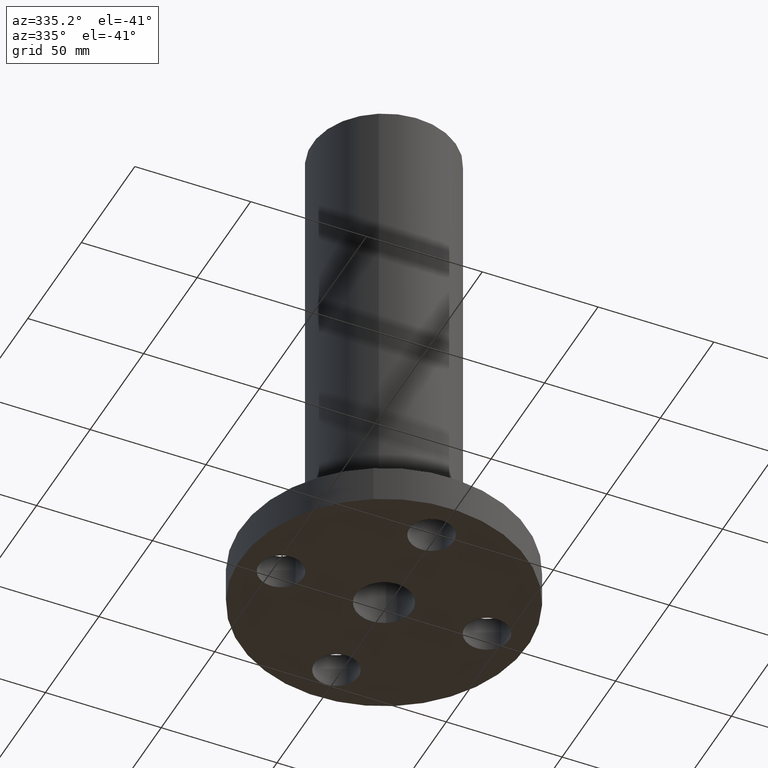
[diagram: clean part render]
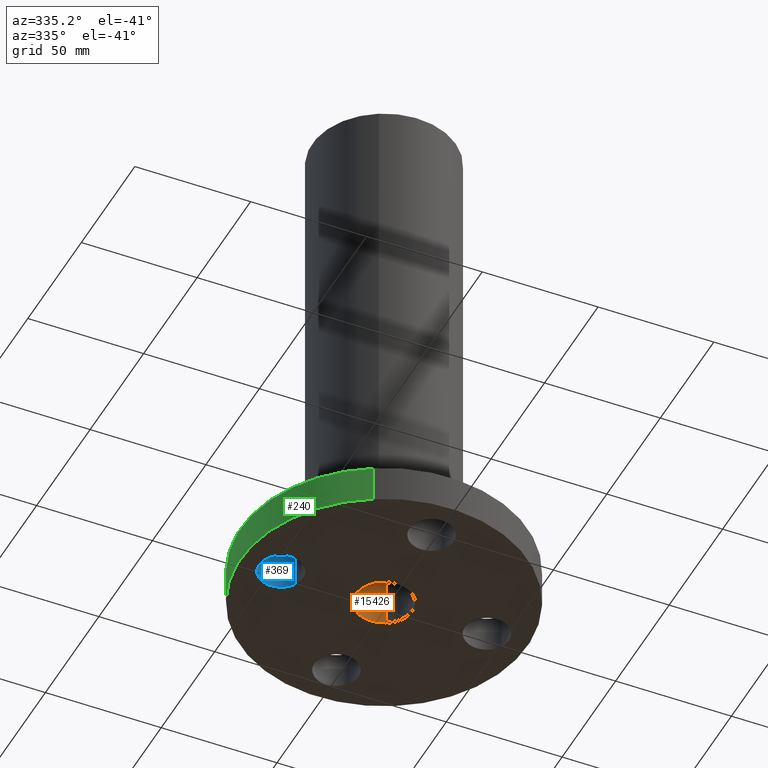
[diagram: same view with three faces highlighted in distinct colors, each labeled with its STEP entity id]
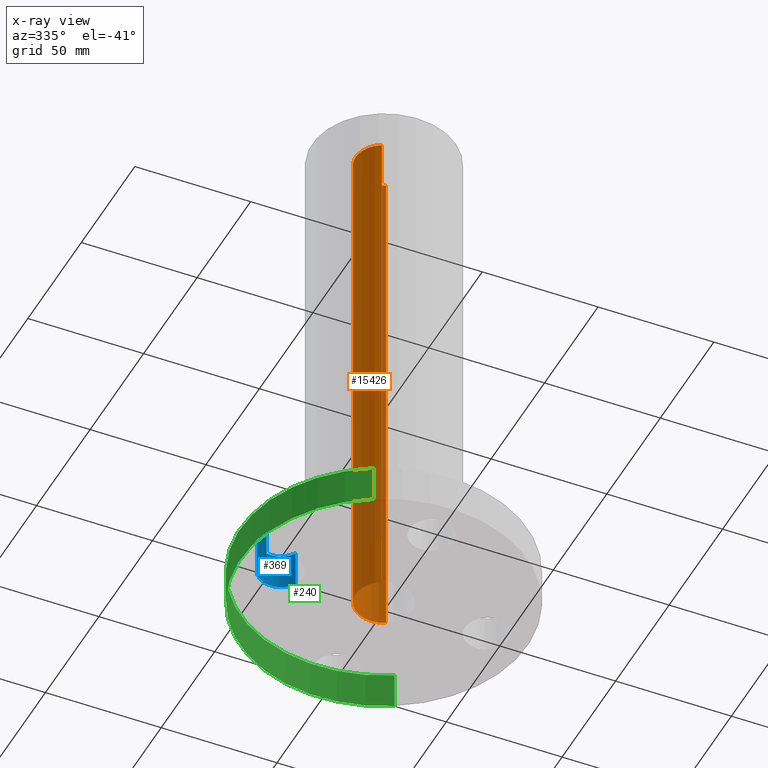
[diagram: x-ray of the same camera — body ghosted, the three highlighted faces saturated]
A machine part, auxiliary view with three faces highlighted in distinct colors.
The next image is the same camera in x-ray (body ghosted, the three faces saturated) — at least one of them is partly hidden behind the body in this view.
Their STEP definitions:

[orange] entity #15426 — the highlighted cylindrical surface (edge-blend (fillet) strip) has radius 12.192 mm, axis along (0, 0, -1).
#14949=AXIS2_PLACEMENT_3D('Circle Axis2P3D',#14947,#14948,$) ;
#15387=AXIS2_PLACEMENT_3D('Cylinder Axis2P3D',#15384,#15385,#15386) ;
#15417=AXIS2_PLACEMENT_3D('Circle Axis2P3D',#15415,#15416,$) ;
#14947=CARTESIAN_POINT('Axis2P3D Location',(0.,0.,8.93750000004)) ;
#14951=CARTESIAN_POINT('Vertex',(-0.230124258531,-0.421239629709,8.93750000004)) ;
#14953=CARTESIAN_POINT('Vertex',(0.230124258531,0.421239629709,8.93750000004)) ;
#15384=CARTESIAN_POINT('Axis2P3D Location',(0.,0.,4.43750000002)) ;
#15393=CARTESIAN_POINT('Vertex',(-0.230124258531,-0.421239629709,0.)) ;
#15395=CARTESIAN_POINT('Vertex',(0.230124258531,0.421239629709,0.)) ;
#15398=CARTESIAN_POINT('Line Origine',(-0.230124258531,-0.421239629709,4.46875000002)) ;
#15403=CARTESIAN_POINT('Line Origine',(0.230124258531,0.421239629709,4.46875000002)) ;
#15415=CARTESIAN_POINT('Axis2P3D Location',(0.,0.,0.)) ;
#14948=DIRECTION('Axis2P3D Direction',(0.,0.,-0.0393700787402)) ;
#15385=DIRECTION('Axis2P3D Direction',(0.,0.,-0.0393700787402)) ;
#15386=DIRECTION('Axis2P3D XDirection',(-0.0188750212049,-0.0345504945626,0.)) ;
#15399=DIRECTION('Vector Direction',(0.,0.,-0.0393700787402)) ;
#15404=DIRECTION('Vector Direction',(0.,0.,-0.0393700787402)) ;
#15416=DIRECTION('Axis2P3D Direction',(0.,0.,-0.0393700787402)) ;
#15400=VECTOR('Line Direction',#15399,0.0393700787402) ;
#15405=VECTOR('Line Direction',#15404,0.0393700787402) ;
#15421=ORIENTED_EDGE('',*,*,#15419,.F.) ;
#15422=ORIENTED_EDGE('',*,*,#15407,.F.) ;
#15423=ORIENTED_EDGE('',*,*,#14955,.F.) ;
#15424=ORIENTED_EDGE('',*,*,#15402,.T.) ;
#15426=ADVANCED_FACE('PartBody',(#15425),#15388,.F.) ;
#14950=CIRCLE('generated circle',#14949,0.480000000002) ;
#15418=CIRCLE('generated circle',#15417,0.480000000002) ;
#15388=CYLINDRICAL_SURFACE('generated cylinder',#15387,0.480000000002) ;
#14955=EDGE_CURVE('',#14952,#14954,#14950,.T.) ;
#15402=EDGE_CURVE('',#14952,#15394,#15401,.T.) ;
#15407=EDGE_CURVE('',#14954,#15396,#15406,.T.) ;
#15419=EDGE_CURVE('',#15396,#15394,#15418,.F.) ;
#15420=EDGE_LOOP('',(#15421,#15422,#15423,#15424)) ;
#15425=FACE_OUTER_BOUND('',#15420,.T.) ;
#15401=LINE('Line',#15398,#15400) ;
#15406=LINE('Line',#15403,#15405) ;
#14952=VERTEX_POINT('',#14951) ;
#14954=VERTEX_POINT('',#14953) ;
#15394=VERTEX_POINT('',#15393) ;
#15396=VERTEX_POINT('',#15395) ;

[blue] entity #369 — the highlighted cylindrical surface (edge-blend (fillet) strip) has radius 9.525 mm, axis along (0, 0, 1).
#166=AXIS2_PLACEMENT_3D('Circle Axis2P3D',#164,#165,$) ;
#342=AXIS2_PLACEMENT_3D('Cylinder Axis2P3D',#339,#340,#341) ;
#360=AXIS2_PLACEMENT_3D('Circle Axis2P3D',#358,#359,$) ;
#159=CARTESIAN_POINT('Vertex',(-1.4209065393,0.179784576977,0.627500000003)) ;
#161=CARTESIAN_POINT('Vertex',(-2.07909346072,-0.179784576977,0.627500000003)) ;
#164=CARTESIAN_POINT('Axis2P3D Location',(-1.75000000001,-2.79741234551E-016,0.627500000003)) ;
#339=CARTESIAN_POINT('Axis2P3D Location',(-1.75000000001,-2.14313189852E-016,0.00393700787402)) ;
#344=CARTESIAN_POINT('Line Origine',(-1.4209065393,0.179784576977,0.313750000001)) ;
#348=CARTESIAN_POINT('Vertex',(-1.4209065393,0.179784576977,2.2401153548E-016)) ;
#351=CARTESIAN_POINT('Line Origine',(-2.07909346072,-0.179784576977,0.313750000001)) ;
#355=CARTESIAN_POINT('Vertex',(-2.07909346072,-0.179784576977,2.2401153548E-016)) ;
#358=CARTESIAN_POINT('Axis2P3D Location',(-1.75000000001,-2.14313189852E-016,0.)) ;
#165=DIRECTION('Axis2P3D Direction',(0.,0.,-0.0393700787402)) ;
#340=DIRECTION('Axis2P3D Direction',(0.,0.,0.0393700787402)) ;
#341=DIRECTION('Axis2P3D XDirection',(-0.0345504945626,-0.0188750212049,0.)) ;
#345=DIRECTION('Vector Direction',(0.,0.,0.0393700787402)) ;
#352=DIRECTION('Vector Direction',(0.,0.,0.0393700787402)) ;
#359=DIRECTION('Axis2P3D Direction',(0.,0.,0.0393700787402)) ;
#346=VECTOR('Line Direction',#345,0.0393700787402) ;
#353=VECTOR('Line Direction',#352,0.0393700787402) ;
#364=ORIENTED_EDGE('',*,*,#350,.F.) ;
#365=ORIENTED_EDGE('',*,*,#168,.F.) ;
#366=ORIENTED_EDGE('',*,*,#357,.T.) ;
#367=ORIENTED_EDGE('',*,*,#362,.T.) ;
#369=ADVANCED_FACE('PartBody',(#368),#343,.F.) ;
#167=CIRCLE('generated circle',#166,0.375000000002) ;
#361=CIRCLE('generated circle',#360,0.375000000002) ;
#343=CYLINDRICAL_SURFACE('generated cylinder',#342,0.375000000002) ;
#168=EDGE_CURVE('',#162,#160,#167,.T.) ;
#350=EDGE_CURVE('',#160,#349,#347,.F.) ;
#357=EDGE_CURVE('',#162,#356,#354,.F.) ;
#362=EDGE_CURVE('',#356,#349,#361,.F.) ;
#363=EDGE_LOOP('',(#364,#365,#366,#367)) ;
#368=FACE_OUTER_BOUND('',#363,.T.) ;
#347=LINE('Line',#344,#346) ;
#354=LINE('Line',#351,#353) ;
#160=VERTEX_POINT('',#159) ;
#162=VERTEX_POINT('',#161) ;
#349=VERTEX_POINT('',#348) ;
#356=VERTEX_POINT('',#355) ;

[green] entity #240 — the highlighted cylindrical surface (partial cylindrical patch) has radius 61.976 mm, axis along (0, 0, -1).
#108=AXIS2_PLACEMENT_3D('Circle Axis2P3D',#106,#107,$) ;
#213=AXIS2_PLACEMENT_3D('Cylinder Axis2P3D',#210,#211,#212) ;
#217=AXIS2_PLACEMENT_3D('Circle Axis2P3D',#215,#216,$) ;
#101=CARTESIAN_POINT('Vertex',(1.1697983142,2.14130145102,0.627500000003)) ;
#103=CARTESIAN_POINT('Vertex',(-1.1697983142,-2.14130145102,0.627500000003)) ;
#106=CARTESIAN_POINT('Axis2P3D Location',(0.,0.,0.627500000003)) ;
#210=CARTESIAN_POINT('Axis2P3D Location',(0.,0.,4.43750000002)) ;
#215=CARTESIAN_POINT('Axis2P3D Location',(0.,0.,5.59482469102E-016)) ;
#219=CARTESIAN_POINT('Vertex',(-1.1697983142,-2.14130145102,0.)) ;
#221=CARTESIAN_POINT('Vertex',(1.1697983142,2.14130145102,0.)) ;
#224=CARTESIAN_POINT('Line Origine',(-1.1697983142,-2.14130145102,0.313750000001)) ;
#229=CARTESIAN_POINT('Line Origine',(1.1697983142,2.14130145102,0.313750000001)) ;
#107=DIRECTION('Axis2P3D Direction',(0.,0.,-0.0393700787402)) ;
#211=DIRECTION('Axis2P3D Direction',(0.,0.,-0.0393700787402)) ;
#212=DIRECTION('Axis2P3D XDirection',(0.0188750212049,0.0345504945626,0.)) ;
#216=DIRECTION('Axis2P3D Direction',(0.,0.,-0.0393700787402)) ;
#225=DIRECTION('Vector Direction',(0.,0.,-0.0393700787402)) ;
#230=DIRECTION('Vector Direction',(0.,0.,-0.0393700787402)) ;
#226=VECTOR('Line Direction',#225,0.0393700787402) ;
#231=VECTOR('Line Direction',#230,0.0393700787402) ;
#235=ORIENTED_EDGE('',*,*,#223,.F.) ;
#236=ORIENTED_EDGE('',*,*,#228,.T.) ;
#237=ORIENTED_EDGE('',*,*,#110,.T.) ;
#238=ORIENTED_EDGE('',*,*,#233,.F.) ;
#240=ADVANCED_FACE('PartBody',(#239),#214,.T.) ;
#109=CIRCLE('generated circle',#108,2.44000000001) ;
#218=CIRCLE('generated circle',#217,2.44000000001) ;
#214=CYLINDRICAL_SURFACE('generated cylinder',#213,2.44000000001) ;
#110=EDGE_CURVE('',#104,#102,#109,.T.) ;
#223=EDGE_CURVE('',#220,#222,#218,.T.) ;
#228=EDGE_CURVE('',#220,#104,#227,.F.) ;
#233=EDGE_CURVE('',#222,#102,#232,.F.) ;
#234=EDGE_LOOP('',(#235,#236,#237,#238)) ;
#239=FACE_OUTER_BOUND('',#234,.T.) ;
#227=LINE('Line',#224,#226) ;
#232=LINE('Line',#229,#231) ;
#102=VERTEX_POINT('',#101) ;
#104=VERTEX_POINT('',#103) ;
#220=VERTEX_POINT('',#219) ;
#222=VERTEX_POINT('',#221) ;